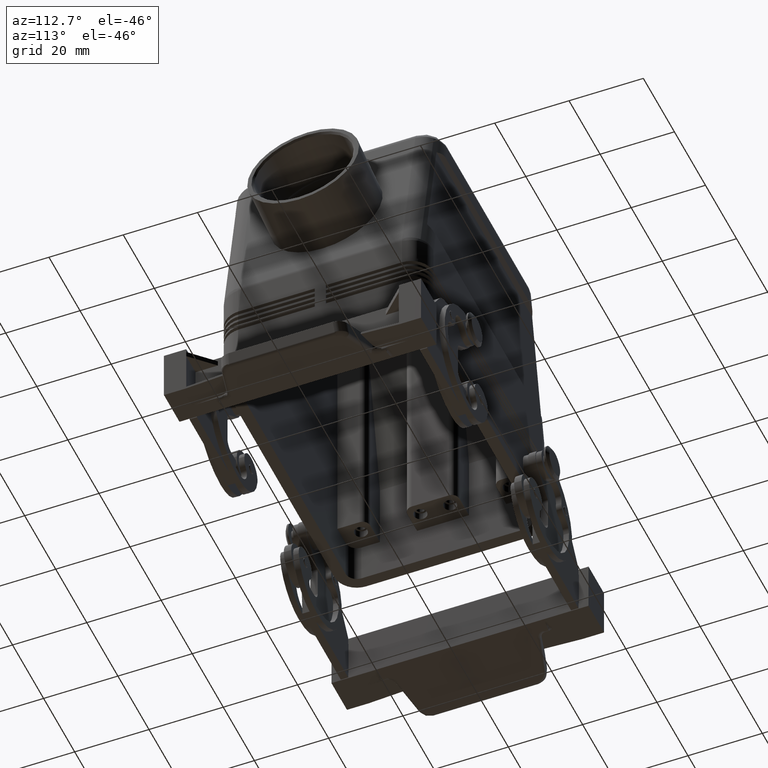
[diagram: clean part render]
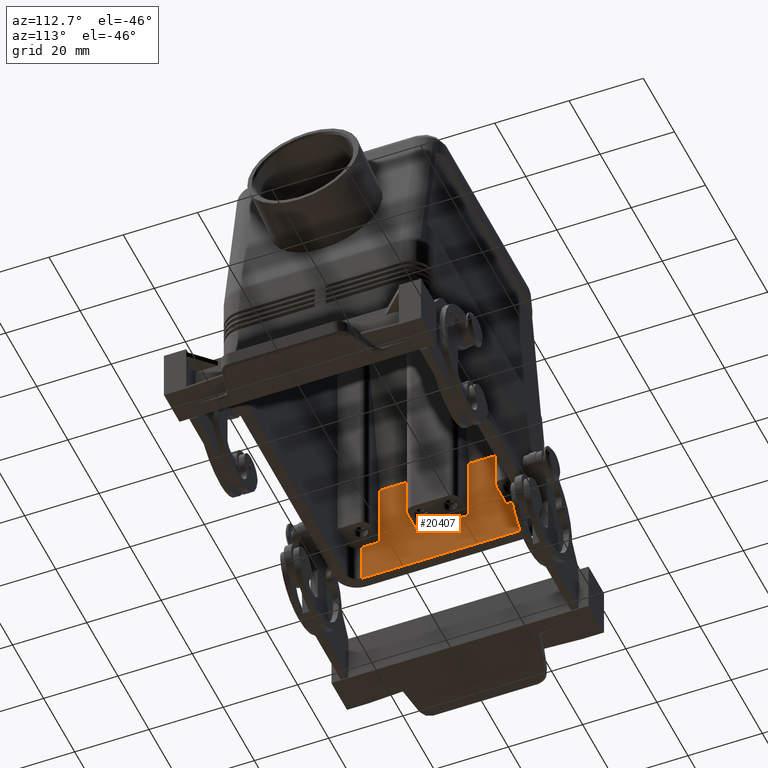
[diagram: same view with one face highlighted and labeled with its STEP entity id]
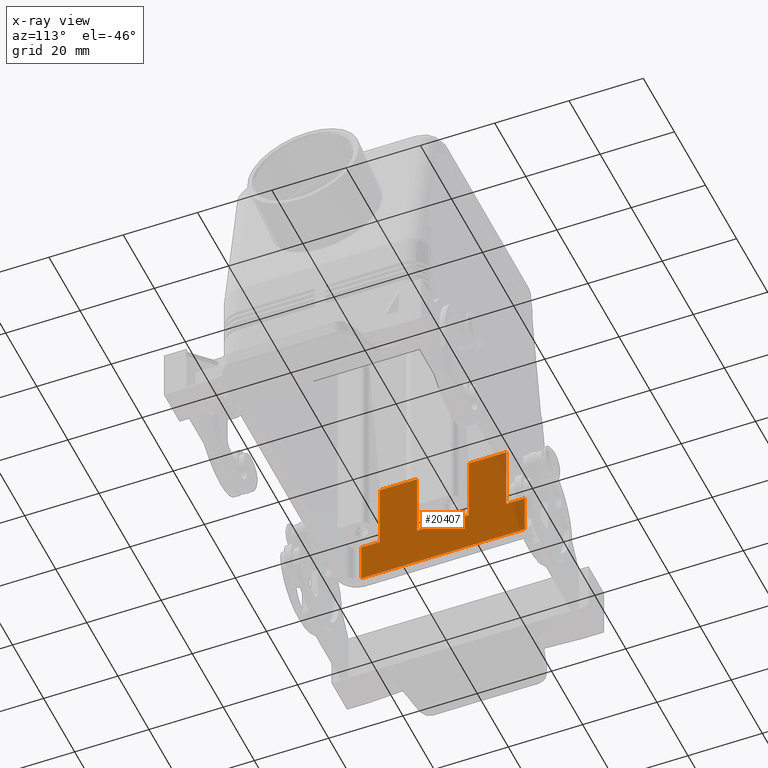
[diagram: x-ray of the same camera — body ghosted, the highlighted face saturated]
A machine part, auxiliary view. The second image highlights one B-rep face of the part: STEP entity #20407.
The next image is the same camera in x-ray: the body ghosted, the highlighted face saturated — about 5% of this face is hidden behind the body in this view.
In plain terms, the highlighted planar face has unit normal (-1, 0, 0).
Its self-contained STEP definition (entity closure, byte-faithful):
#19660=CARTESIAN_POINT('',(-38.000000000000007,7.000000000000001,10.999999999999996));
#19661=VERTEX_POINT('',#19660);
#19668=CARTESIAN_POINT('',(-38.000000000000007,7.000000000000001,29.465386352867107));
#19669=VERTEX_POINT('',#19668);
#19670=CARTESIAN_POINT('',(-38.000000000000007,7.000000000000001,29.465386352867107));
#19671=DIRECTION('',(0.0,0.0,-1.0));
#19672=VECTOR('',#19671,18.465386352867110);
#19673=LINE('',#19670,#19672);
#19674=EDGE_CURVE('',#19669,#19661,#19673,.T.);
#19707=CARTESIAN_POINT('',(-38.000000000000007,-7.000000000000001,10.999999999999996));
#19708=VERTEX_POINT('',#19707);
#19715=CARTESIAN_POINT('',(-38.000000000000007,-7.000000000000001,10.999999999999996));
#19716=DIRECTION('',(0.0,1.0,0.0));
#19717=VECTOR('',#19716,14.000000000000002);
#19718=LINE('',#19715,#19717);
#19719=EDGE_CURVE('',#19708,#19661,#19718,.T.);
#20004=CARTESIAN_POINT('',(-38.000000000000007,17.0,29.465386352867107));
#20005=VERTEX_POINT('',#20004);
#20012=CARTESIAN_POINT('',(-38.000000000000007,17.0,10.999999999999996));
#20013=VERTEX_POINT('',#20012);
#20014=CARTESIAN_POINT('',(-38.000000000000007,17.0,29.465386352867107));
#20015=DIRECTION('',(0.0,0.0,-1.0));
#20016=VECTOR('',#20015,18.465386352867110);
#20017=LINE('',#20014,#20016);
#20018=EDGE_CURVE('',#20005,#20013,#20017,.T.);
#20053=CARTESIAN_POINT('',(-38.000000000000007,-7.000000000000001,29.465386352867107));
#20054=VERTEX_POINT('',#20053);
#20061=CARTESIAN_POINT('',(-38.000000000000007,-7.000000000000001,29.465386352867107));
#20062=DIRECTION('',(0.0,0.0,-1.0));
#20063=VECTOR('',#20062,18.465386352867110);
#20064=LINE('',#20061,#20063);
#20065=EDGE_CURVE('',#20054,#19708,#20064,.T.);
#20119=CARTESIAN_POINT('',(-38.000000000000007,-17.0,10.999999999999996));
#20120=VERTEX_POINT('',#20119);
#20127=CARTESIAN_POINT('',(-38.000000000000007,-17.0,29.465386352867107));
#20128=VERTEX_POINT('',#20127);
#20129=CARTESIAN_POINT('',(-38.000000000000007,-17.0,29.465386352867107));
#20130=DIRECTION('',(0.0,0.0,-1.0));
#20131=VECTOR('',#20130,18.465386352867110);
#20132=LINE('',#20129,#20131);
#20133=EDGE_CURVE('',#20128,#20120,#20132,.T.);
#20166=CARTESIAN_POINT('',(-38.000000000000007,-22.0,11.0));
#20167=VERTEX_POINT('',#20166);
#20175=CARTESIAN_POINT('',(-38.000000000000007,-22.0,11.0));
#20176=DIRECTION('',(0.0,1.0,0.0));
#20177=VECTOR('',#20176,5.0);
#20178=LINE('',#20175,#20177);
#20179=EDGE_CURVE('',#20167,#20120,#20178,.T.);
#20243=CARTESIAN_POINT('',(-38.000000000000007,-7.000000000000001,29.465386352867107));
#20244=DIRECTION('',(0.0,-1.0,0.0));
#20245=VECTOR('',#20244,10.0);
#20246=LINE('',#20243,#20245);
#20247=EDGE_CURVE('',#20054,#20128,#20246,.T.);
#20357=CARTESIAN_POINT('',(-38.000000000000007,-22.0,0.0));
#20358=DIRECTION('',(-1.0,0.0,0.0));
#20359=DIRECTION('',(0.0,0.0,1.0));
#20360=AXIS2_PLACEMENT_3D('',#20357,#20358,#20359);
#20361=PLANE('',#20360);
#20362=CARTESIAN_POINT('',(-38.000000000000007,22.0,0.0));
#20363=VERTEX_POINT('',#20362);
#20364=CARTESIAN_POINT('',(-38.000000000000007,-22.0,0.0));
#20365=VERTEX_POINT('',#20364);
#20366=CARTESIAN_POINT('',(-38.000000000000007,22.0,0.0));
#20367=DIRECTION('',(0.0,-1.0,0.0));
#20368=VECTOR('',#20367,44.0);
#20369=LINE('',#20366,#20368);
#20370=EDGE_CURVE('',#20363,#20365,#20369,.T.);
#20371=ORIENTED_EDGE('',*,*,#20370,.F.);
#20372=CARTESIAN_POINT('',(-38.000000000000007,22.0,11.0));
#20373=VERTEX_POINT('',#20372);
#20374=CARTESIAN_POINT('',(-38.000000000000007,22.0,0.0));
#20375=DIRECTION('',(0.0,0.0,1.0));
#20376=VECTOR('',#20375,11.0);
#20377=LINE('',#20374,#20376);
#20378=EDGE_CURVE('',#20363,#20373,#20377,.T.);
#20379=ORIENTED_EDGE('',*,*,#20378,.T.);
#20380=CARTESIAN_POINT('',(-38.000000000000007,17.0,10.999999999999996));
#20381=DIRECTION('',(0.0,1.0,0.0));
#20382=VECTOR('',#20381,5.0);
#20383=LINE('',#20380,#20382);
#20384=EDGE_CURVE('',#20013,#20373,#20383,.T.);
#20385=ORIENTED_EDGE('',*,*,#20384,.F.);
#20386=ORIENTED_EDGE('',*,*,#20018,.F.);
#20387=CARTESIAN_POINT('',(-38.000000000000007,7.000000000000001,29.465386352867107));
#20388=DIRECTION('',(0.0,1.0,0.0));
#20389=VECTOR('',#20388,10.0);
#20390=LINE('',#20387,#20389);
#20391=EDGE_CURVE('',#19669,#20005,#20390,.T.);
#20392=ORIENTED_EDGE('',*,*,#20391,.F.);
#20393=ORIENTED_EDGE('',*,*,#19674,.T.);
#20394=ORIENTED_EDGE('',*,*,#19719,.F.);
#20395=ORIENTED_EDGE('',*,*,#20065,.F.);
#20396=ORIENTED_EDGE('',*,*,#20247,.T.);
#20397=ORIENTED_EDGE('',*,*,#20133,.T.);
#20398=ORIENTED_EDGE('',*,*,#20179,.F.);
#20399=CARTESIAN_POINT('',(-38.000000000000007,-22.0,0.0));
#20400=DIRECTION('',(0.0,0.0,1.0));
#20401=VECTOR('',#20400,11.0);
#20402=LINE('',#20399,#20401);
#20403=EDGE_CURVE('',#20365,#20167,#20402,.T.);
#20404=ORIENTED_EDGE('',*,*,#20403,.F.);
#20405=EDGE_LOOP('',(#20371,#20379,#20385,#20386,#20392,#20393,#20394,#20395,#20396,#20397,#20398,#20404));
#20406=FACE_OUTER_BOUND('',#20405,.T.);
#20407=ADVANCED_FACE('',(#20406),#20361,.F.);